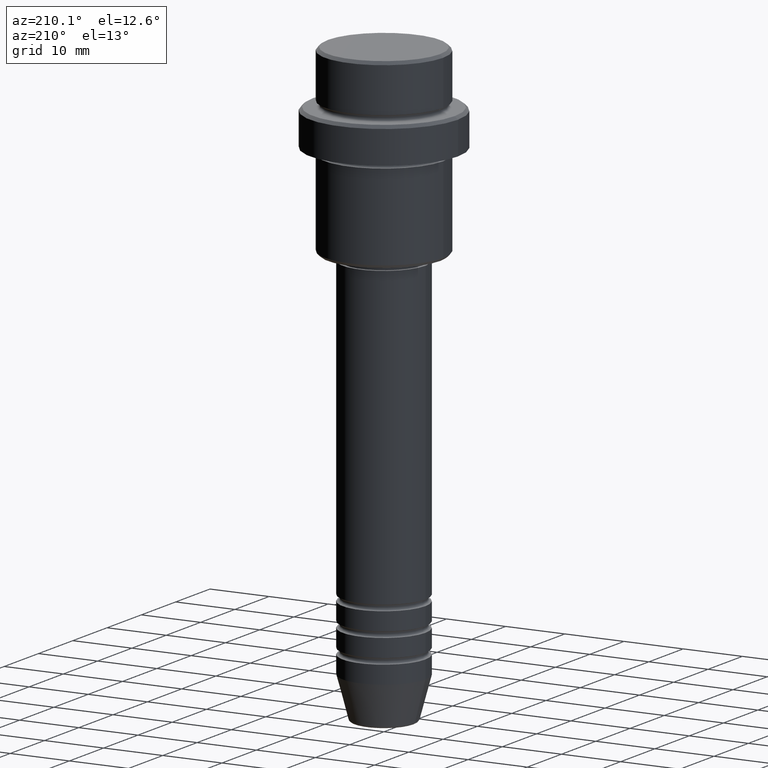
[diagram: clean part render]
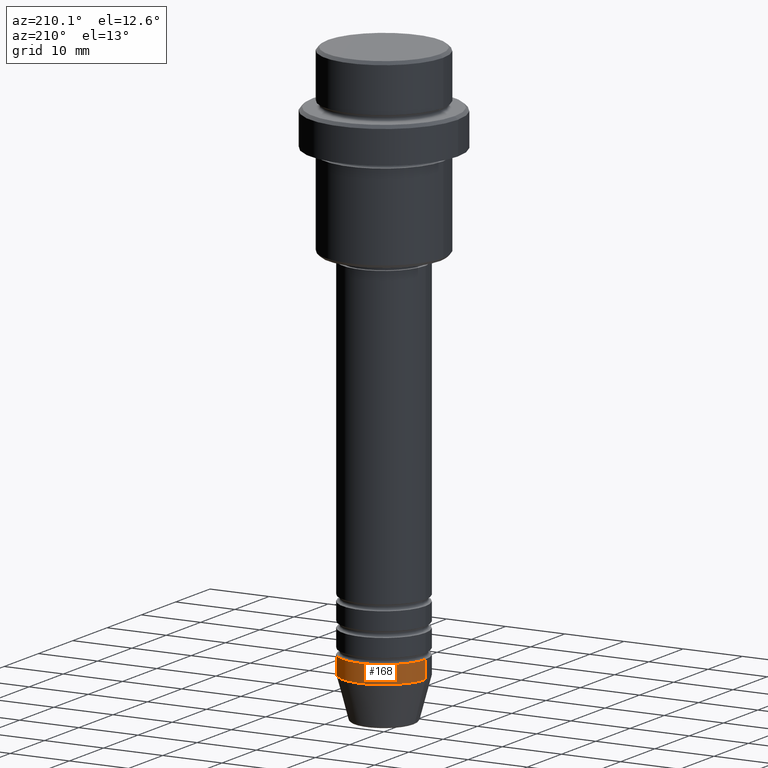
[diagram: same view with one face highlighted and labeled with its STEP entity id]
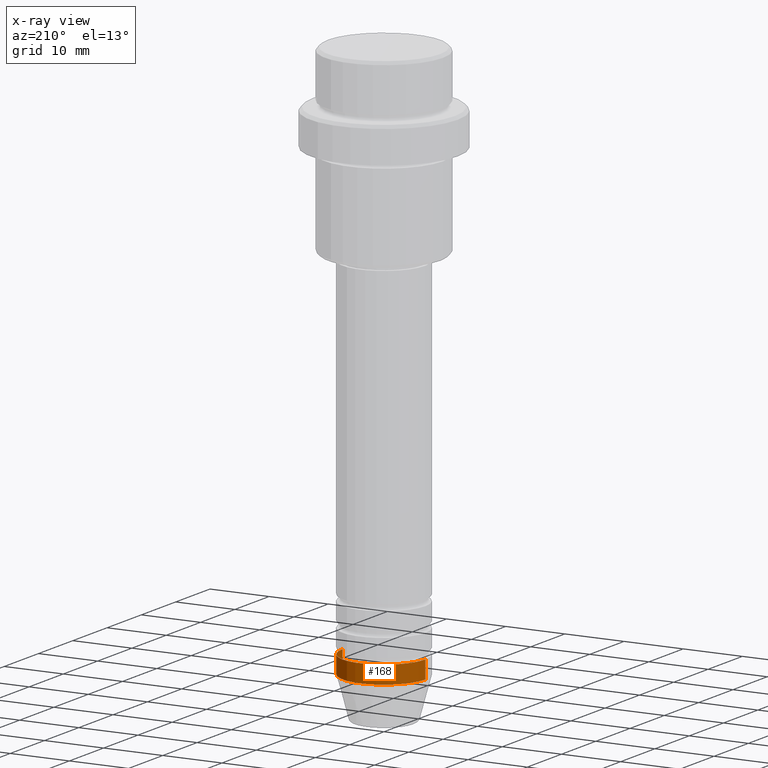
[diagram: x-ray of the same camera — body ghosted, the highlighted face saturated]
A machine part, auxiliary view. The second image highlights one B-rep face of the part: STEP entity #168.
The next image is the same camera in x-ray: the body ghosted, the highlighted face saturated — about 0% of this face is hidden behind the body in this view.
In plain terms, the highlighted cylindrical surface (partial cylindrical patch) has radius 7 mm, axis along (-0, -0, 1).
Its self-contained STEP definition (entity closure, byte-faithful):
#61 = CARTESIAN_POINT ( 'NONE',  ( 7.000000000000000000, 0.000000000000000000, 0.000000000000000000 ) ) ;
#94 = VERTEX_POINT ( 'NONE', #608 ) ;
#168 = ADVANCED_FACE ( 'NONE', ( #826 ), #630, .T. ) ;
#169 = DIRECTION ( 'NONE',  ( 1.000000000000000000, 0.000000000000000000, 0.000000000000000000 ) ) ;
#175 = AXIS2_PLACEMENT_3D ( 'NONE', #835, #1391, #1395 ) ;
#212 = VERTEX_POINT ( 'NONE', #1179 ) ;
#366 = EDGE_CURVE ( 'NONE', #1189, #1248, #648, .T. ) ;
#399 = CARTESIAN_POINT ( 'NONE',  ( 0.000000000000000000, 0.000000000000000000, -94.00000000000000000 ) ) ;
#426 = ORIENTED_EDGE ( 'NONE', *, *, #1225, .T. ) ;
#558 = ORIENTED_EDGE ( 'NONE', *, *, #1106, .F. ) ;
#577 = LINE ( 'NONE', #763, #675 ) ;
#608 = CARTESIAN_POINT ( 'NONE',  ( -7.000000000000000000, 8.572527594031473190E-16, -91.00000000000000000 ) ) ;
#630 = CYLINDRICAL_SURFACE ( 'NONE', #175, 7.000000000000000000 ) ;
#648 = CIRCLE ( 'NONE', #1198, 7.000000000000000000 ) ;
#675 = VECTOR ( 'NONE', #1334, 1000.000000000000000 ) ;
#723 = DIRECTION ( 'NONE',  ( -0.000000000000000000, -0.000000000000000000, 1.000000000000000000 ) ) ;
#763 = CARTESIAN_POINT ( 'NONE',  ( -7.000000000000000000, 8.572527594031473190E-16, 0.000000000000000000 ) ) ;
#792 = ORIENTED_EDGE ( 'NONE', *, *, #869, .F. ) ;
#818 = DIRECTION ( 'NONE',  ( -0.000000000000000000, -0.000000000000000000, 1.000000000000000000 ) ) ;
#821 = DIRECTION ( 'NONE',  ( 1.000000000000000000, 0.000000000000000000, 0.000000000000000000 ) ) ;
#826 = FACE_OUTER_BOUND ( 'NONE', #864, .T. ) ;
#835 = CARTESIAN_POINT ( 'NONE',  ( 0.000000000000000000, 0.000000000000000000, 0.000000000000000000 ) ) ;
#864 = EDGE_LOOP ( 'NONE', ( #1090, #426, #792, #558 ) ) ;
#869 = EDGE_CURVE ( 'NONE', #212, #94, #1126, .T. ) ;
#898 = AXIS2_PLACEMENT_3D ( 'NONE', #1136, #1263, #169 ) ;
#929 = LINE ( 'NONE', #61, #1412 ) ;
#1042 = CARTESIAN_POINT ( 'NONE',  ( 7.000000000000000000, 0.000000000000000000, -94.00000000000000000 ) ) ;
#1090 = ORIENTED_EDGE ( 'NONE', *, *, #366, .T. ) ;
#1106 = EDGE_CURVE ( 'NONE', #1189, #212, #929, .T. ) ;
#1126 = CIRCLE ( 'NONE', #898, 7.000000000000000000 ) ;
#1136 = CARTESIAN_POINT ( 'NONE',  ( 0.000000000000000000, 0.000000000000000000, -91.00000000000000000 ) ) ;
#1179 = CARTESIAN_POINT ( 'NONE',  ( 7.000000000000000000, 0.000000000000000000, -91.00000000000000000 ) ) ;
#1189 = VERTEX_POINT ( 'NONE', #1042 ) ;
#1198 = AXIS2_PLACEMENT_3D ( 'NONE', #399, #723, #821 ) ;
#1225 = EDGE_CURVE ( 'NONE', #1248, #94, #577, .T. ) ;
#1248 = VERTEX_POINT ( 'NONE', #1320 ) ;
#1263 = DIRECTION ( 'NONE',  ( -0.000000000000000000, -0.000000000000000000, 1.000000000000000000 ) ) ;
#1320 = CARTESIAN_POINT ( 'NONE',  ( -7.000000000000000000, 8.572527594031473190E-16, -94.00000000000000000 ) ) ;
#1334 = DIRECTION ( 'NONE',  ( -0.000000000000000000, -0.000000000000000000, 1.000000000000000000 ) ) ;
#1391 = DIRECTION ( 'NONE',  ( -0.000000000000000000, -0.000000000000000000, 1.000000000000000000 ) ) ;
#1395 = DIRECTION ( 'NONE',  ( 1.000000000000000000, 0.000000000000000000, 0.000000000000000000 ) ) ;
#1412 = VECTOR ( 'NONE', #818, 1000.000000000000000 ) ;